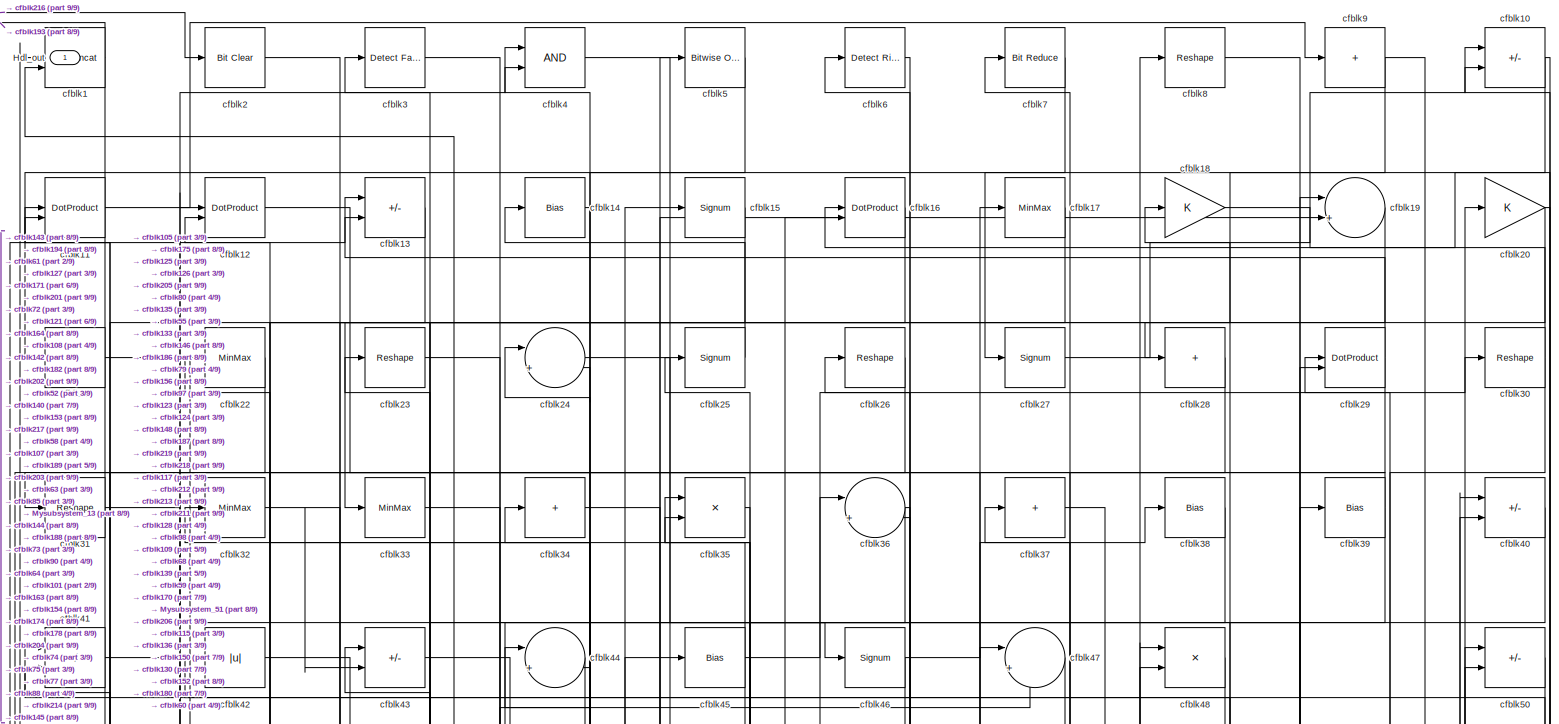
[diagram: root canvas - part 1/9, full width, top band]
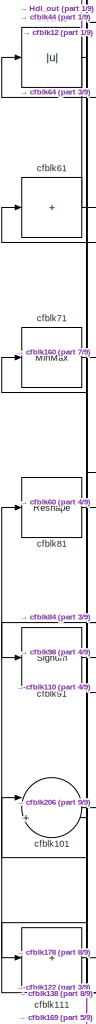
[diagram: root canvas - part 2/9, middle left region]
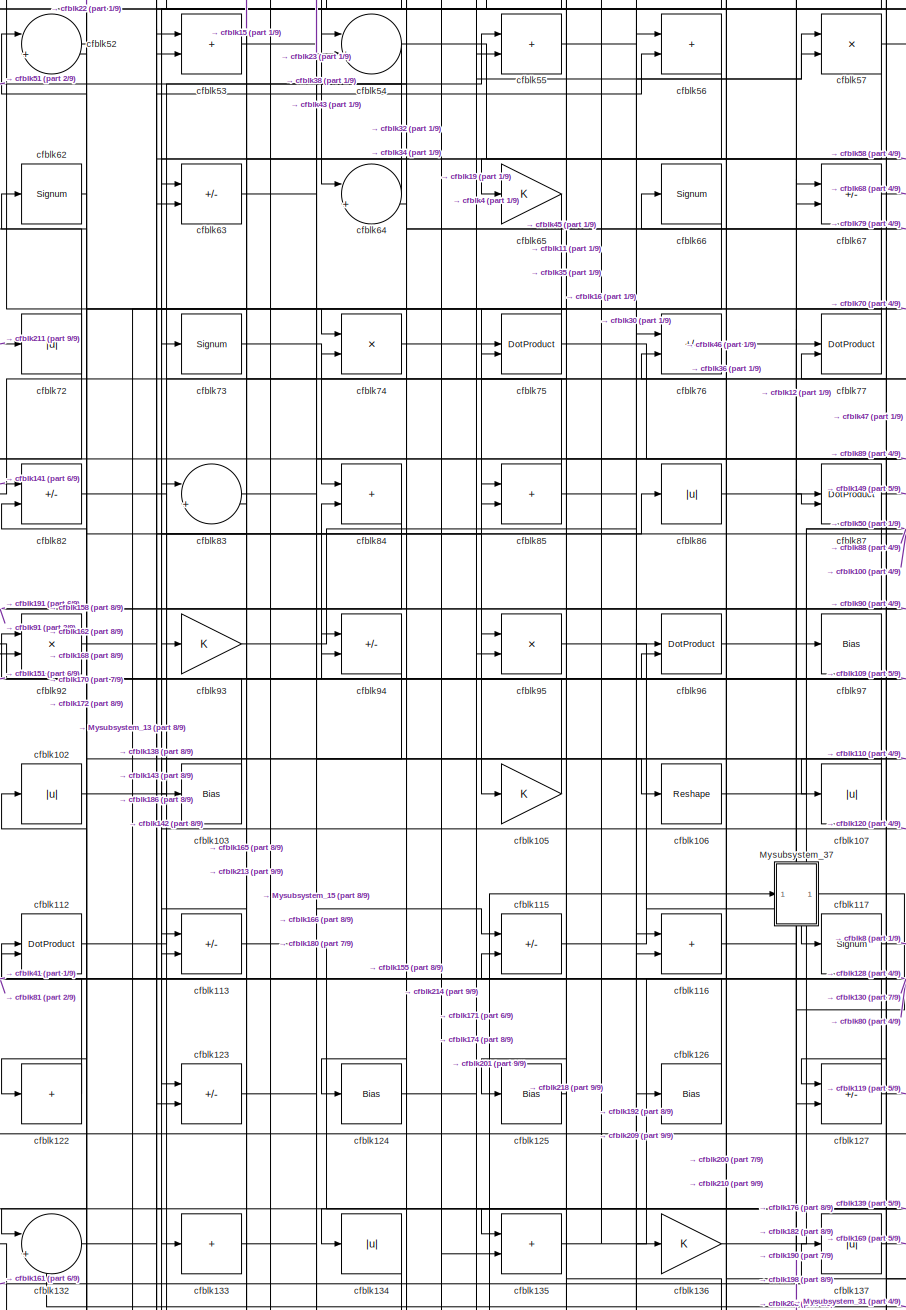
[diagram: root canvas - part 3/9, central region]
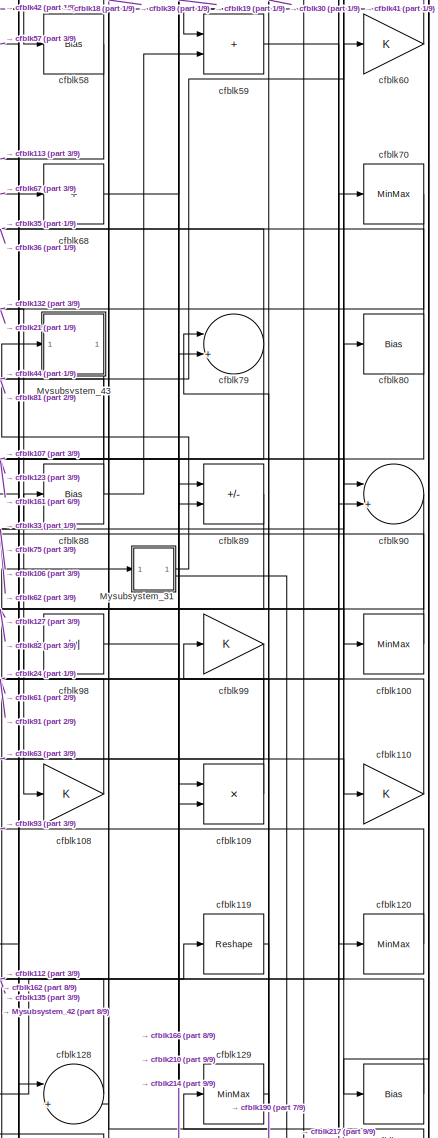
[diagram: root canvas - part 4/9, middle right region]
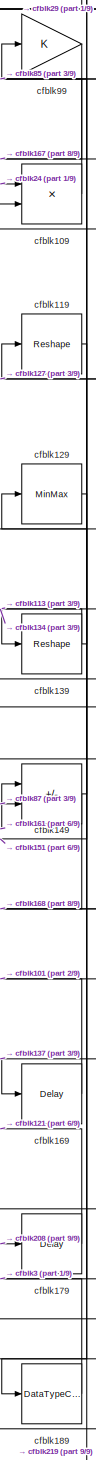
[diagram: root canvas - part 5/9, middle right region]
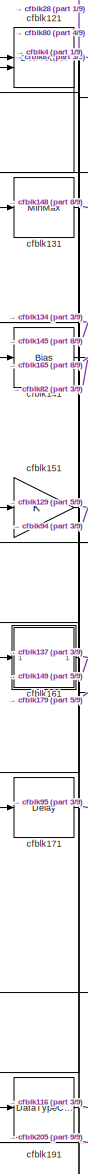
[diagram: root canvas - part 6/9, bottom left region]
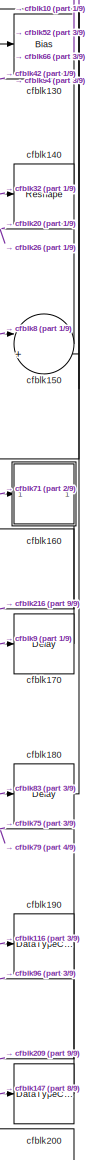
[diagram: root canvas - part 7/9, bottom right region]
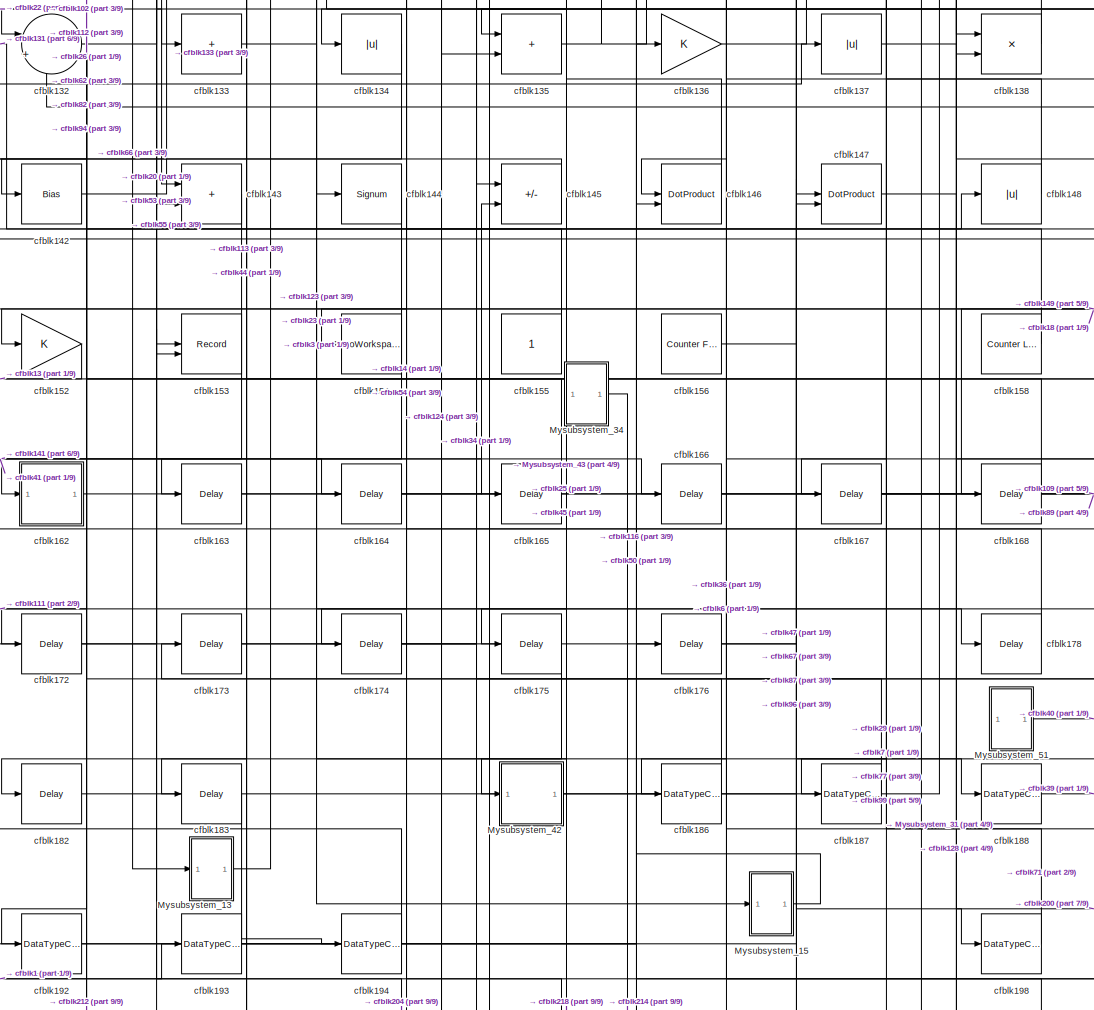
[diagram: root canvas - part 8/9, bottom center region]
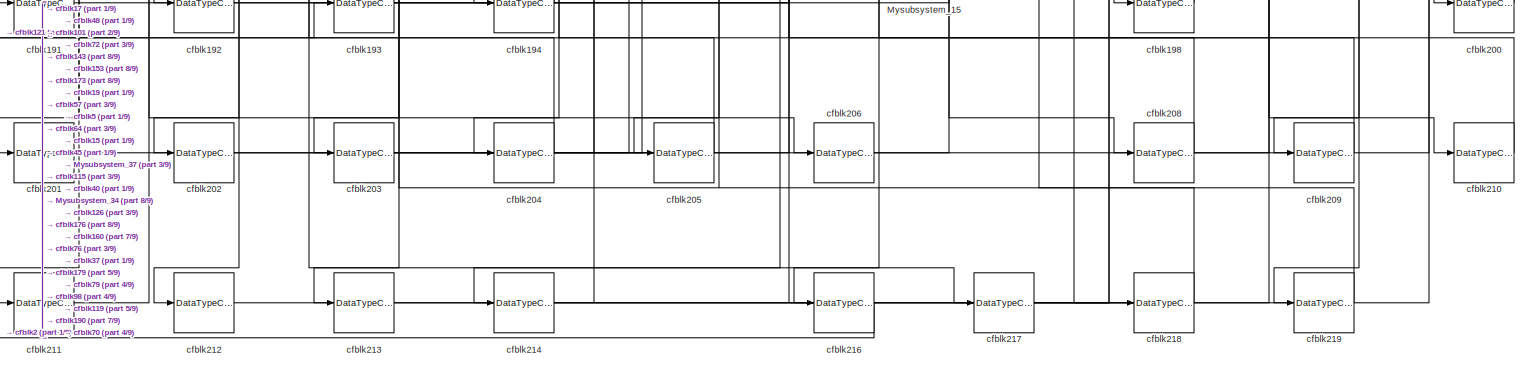
[diagram: root canvas - part 9/9, full width, bottom band]
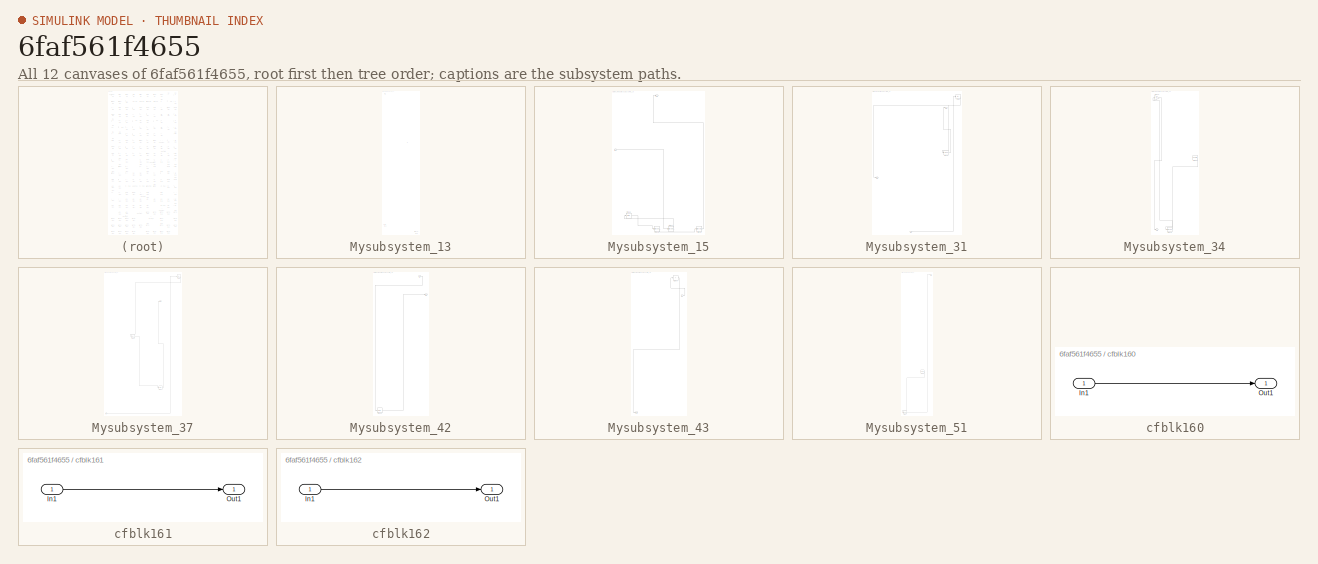
[diagram: thumbnail index - all 12 canvases of the model, root first then tree order]
MODEL slx_6faf561f4655
KIND model
CONFIG AbsTol = auto
CONFIG EnableMultiTasking = off
CONFIG FixedStep = auto
CONFIG MaxStep = auto
CONFIG MinStep = auto
CONFIG RelTol = 1e-3
CONFIG SampleTimeConstraint = Unconstrained
CONFIG SolverName = VariableStepAuto
CONFIG StartTime = 0.0
CONFIG StopTime = 10.0
BLOCK [Outport] Hdl_out
  OutDataTypeStr = uint8
BLOCK [SubSystem] Mysubsystem_13
  RTWFcnName = Mysubsystem_13
  RTWFcnNameOpts = User specified
  RTWFileNameOpts = Use function name
  RTWSystemCode = Reusable function
  TreatAsAtomicUnit = on
BLOCK [Inport] Mysubsystem_13/In1
BLOCK [Outport] Mysubsystem_13/Out1
BLOCK [Delay] Mysubsystem_13/cfblk181
  InputPortMap = u0
  SampleTime = 1
BLOCK [DataTypeConversion] Mysubsystem_13/cfblk195
  OutDataTypeStr = uint8
  RndMeth = Floor
  SaturateOnIntegerOverflow = off
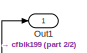
[diagram: Mysubsystem_15 - part 1/2, top center region]
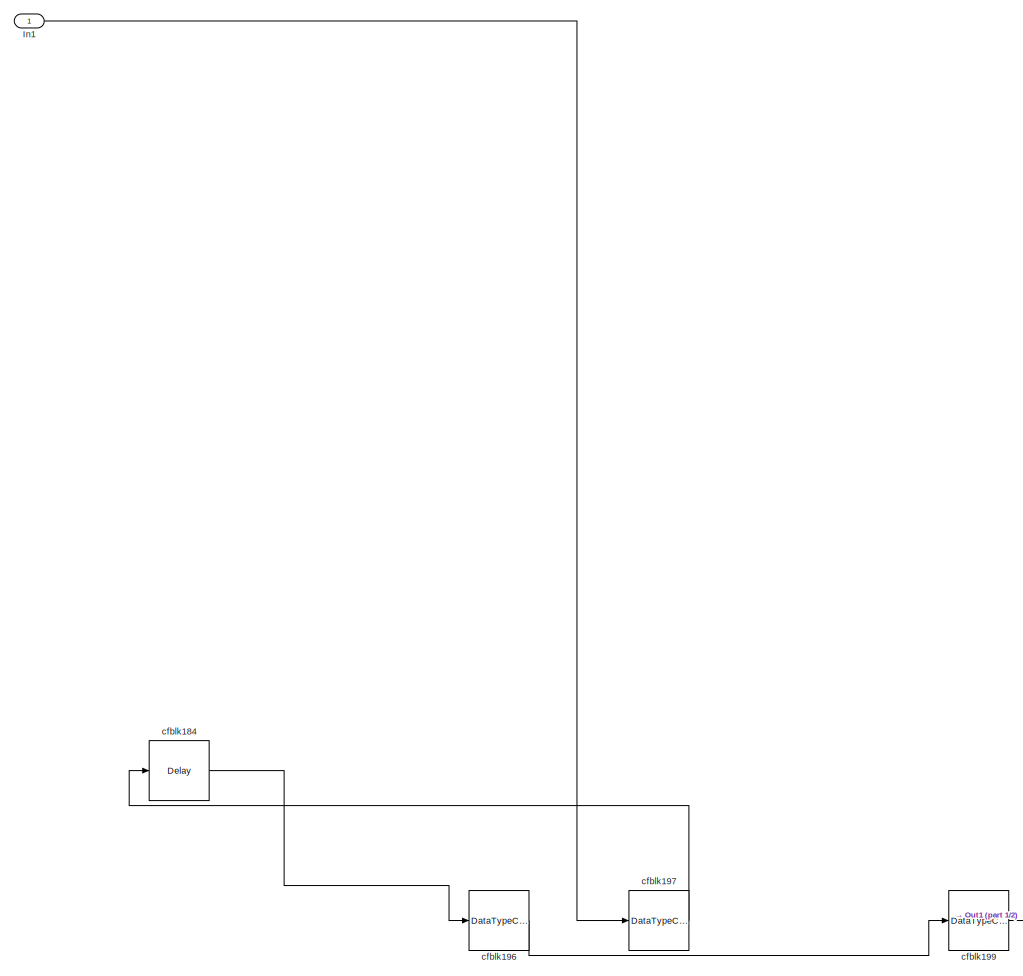
[diagram: Mysubsystem_15 - part 2/2, full width, bottom band]
BLOCK [SubSystem] Mysubsystem_15
  RTWFcnName = Mysubsystem_15
  RTWFcnNameOpts = User specified
  RTWFileNameOpts = Use function name
  RTWSystemCode = Reusable function
  TreatAsAtomicUnit = on
BLOCK [Inport] Mysubsystem_15/In1
BLOCK [Outport] Mysubsystem_15/Out1
BLOCK [Delay] Mysubsystem_15/cfblk184
  InputPortMap = u0
  SampleTime = 1
BLOCK [DataTypeConversion] Mysubsystem_15/cfblk196
  OutDataTypeStr = uint8
  RndMeth = Floor
  SaturateOnIntegerOverflow = off
BLOCK [DataTypeConversion] Mysubsystem_15/cfblk197
  OutDataTypeStr = uint8
  RndMeth = Floor
  SaturateOnIntegerOverflow = off
BLOCK [DataTypeConversion] Mysubsystem_15/cfblk199
  OutDataTypeStr = uint8
  RndMeth = Floor
  SaturateOnIntegerOverflow = off
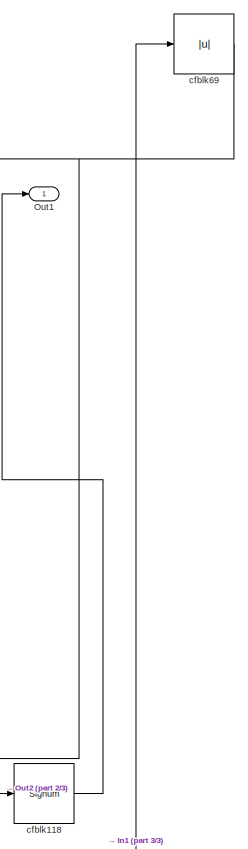
[diagram: Mysubsystem_31 - part 1/3, top right region]
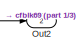
[diagram: Mysubsystem_31 - part 2/3, middle left region]
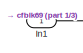
[diagram: Mysubsystem_31 - part 3/3, bottom center region]
BLOCK [SubSystem] Mysubsystem_31
  RTWFcnName = Mysubsystem_31
  RTWFcnNameOpts = User specified
  RTWFileNameOpts = Use function name
  RTWSystemCode = Reusable function
  TreatAsAtomicUnit = on
BLOCK [Inport] Mysubsystem_31/In1
BLOCK [Outport] Mysubsystem_31/Out1
BLOCK [Outport] Mysubsystem_31/Out2
  Port = 2
BLOCK [Signum] Mysubsystem_31/cfblk118
BLOCK [Abs] Mysubsystem_31/cfblk69
  SaturateOnIntegerOverflow = off
BLOCK [SubSystem] Mysubsystem_34
  RTWFcnName = Mysubsystem_34
  RTWFcnNameOpts = User specified
  RTWFileNameOpts = Use function name
  RTWSystemCode = Reusable function
  TreatAsAtomicUnit = on
BLOCK [Outport] Mysubsystem_34/Out1
BLOCK [Gain] Mysubsystem_34/cfblk104
BLOCK [Reference] Mysubsystem_34/cfblk157  REF=hdlsllib/Sources/Counter
Free-Running
  SourceBlock = hdlsllib/Sources/Counter\nFree-Running
  SourceType = Counter Free-Running
BLOCK [DataTypeConversion] Mysubsystem_34/cfblk215
  OutDataTypeStr = uint8
  RndMeth = Floor
  SaturateOnIntegerOverflow = off
BLOCK [SubSystem] Mysubsystem_37
  RTWFcnName = Mysubsystem_37
  RTWFcnNameOpts = User specified
  RTWFileNameOpts = Use function name
  RTWSystemCode = Reusable function
  TreatAsAtomicUnit = on
BLOCK [Inport] Mysubsystem_37/In1
BLOCK [Outport] Mysubsystem_37/Out1
BLOCK [Abs] Mysubsystem_37/cfblk114
  SaturateOnIntegerOverflow = off
BLOCK [Delay] Mysubsystem_37/cfblk177
  InputPortMap = u0
  SampleTime = 1
BLOCK [Abs] Mysubsystem_37/cfblk49
  SaturateOnIntegerOverflow = off
BLOCK [SubSystem] Mysubsystem_42
  RTWFcnName = Mysubsystem_42
  RTWFcnNameOpts = User specified
  RTWFileNameOpts = Use function name
  RTWSystemCode = Reusable function
  TreatAsAtomicUnit = on
BLOCK [Inport] Mysubsystem_42/In1
BLOCK [Outport] Mysubsystem_42/Out1
BLOCK [Delay] Mysubsystem_42/cfblk185
  InputPortMap = u0
  SampleTime = 1
BLOCK [SubSystem] Mysubsystem_43
  RTWFcnName = Mysubsystem_43
  RTWFcnNameOpts = User specified
  RTWFileNameOpts = Use function name
  RTWSystemCode = Reusable function
  TreatAsAtomicUnit = on
BLOCK [Inport] Mysubsystem_43/In1
BLOCK [Outport] Mysubsystem_43/Out1
BLOCK [Sum] Mysubsystem_43/cfblk78
  IconShape = rectangular
  Inputs = +
BLOCK [SubSystem] Mysubsystem_51
  RTWFcnName = Mysubsystem_51
  RTWFcnNameOpts = User specified
  RTWFileNameOpts = Use function name
  RTWSystemCode = Reusable function
  TreatAsAtomicUnit = on
BLOCK [Outport] Mysubsystem_51/Out1
BLOCK [Reference] Mysubsystem_51/cfblk159  REF=hdlsllib/Sources/Counter
Free-Running
  SourceBlock = hdlsllib/Sources/Counter\nFree-Running
  SourceType = Counter Free-Running
BLOCK [DataTypeConversion] Mysubsystem_51/cfblk207
  OutDataTypeStr = uint8
  RndMeth = Floor
  SaturateOnIntegerOverflow = off
BLOCK [Reference] cfblk1  REF=hdlsllib/Logic and Bit
Operations/Bit Concat
  SourceBlock = hdlsllib/Logic and Bit\nOperations/Bit Concat
  SourceType = Bit Concat
BLOCK [Sum] cfblk10
  IconShape = rectangular
  Inputs = +-
  OutDataTypeStr = uint8
BLOCK [MinMax] cfblk100
  OutDataTypeStr = uint8
BLOCK [Sum] cfblk101
  Inputs = |++
  OutDataTypeStr = uint8
BLOCK [Abs] cfblk102
  OutDataTypeStr = uint8
  SaturateOnIntegerOverflow = off
BLOCK [Bias] cfblk103
  Bias = 0.0
  SaturateOnIntegerOverflow = off
BLOCK [Gain] cfblk105
  OutDataTypeStr = uint8
BLOCK [Reshape] cfblk106
BLOCK [Abs] cfblk107
  OutDataTypeStr = uint8
  SaturateOnIntegerOverflow = off
BLOCK [Gain] cfblk108
  OutDataTypeStr = uint8
BLOCK [Product] cfblk109
  Inputs = */
  OutDataTypeStr = uint8
  RndMeth = Zero
  SaturateOnIntegerOverflow = on
BLOCK [DotProduct] cfblk11
  OutDataTypeStr = uint8
BLOCK [Gain] cfblk110
  OutDataTypeStr = uint8
BLOCK [Sum] cfblk111
  IconShape = rectangular
  Inputs = +
  OutDataTypeStr = uint8
BLOCK [DotProduct] cfblk112
  OutDataTypeStr = uint8
BLOCK [Sum] cfblk113
  IconShape = rectangular
  Inputs = +-
  OutDataTypeStr = uint8
BLOCK [Sum] cfblk115
  IconShape = rectangular
  Inputs = +-
  OutDataTypeStr = uint8
BLOCK [Sum] cfblk116
  IconShape = rectangular
  OutDataTypeStr = uint8
BLOCK [Signum] cfblk117
BLOCK [Reshape] cfblk119
BLOCK [DotProduct] cfblk12
  OutDataTypeStr = uint8
BLOCK [MinMax] cfblk120
  OutDataTypeStr = uint8
BLOCK [DotProduct] cfblk121
  OutDataTypeStr = uint8
BLOCK [Sum] cfblk122
  IconShape = rectangular
  Inputs = +
  OutDataTypeStr = uint8
BLOCK [Sum] cfblk123
  IconShape = rectangular
  Inputs = +-
  OutDataTypeStr = uint8
BLOCK [Bias] cfblk124
  Bias = 0.0
  SaturateOnIntegerOverflow = off
BLOCK [Bias] cfblk125
  Bias = 0.0
  SaturateOnIntegerOverflow = off
BLOCK [Bias] cfblk126
  Bias = 0.0
  SaturateOnIntegerOverflow = off
BLOCK [Sum] cfblk127
  IconShape = rectangular
  Inputs = +-
  OutDataTypeStr = uint8
BLOCK [Sum] cfblk128
  Inputs = |++
  OutDataTypeStr = uint8
BLOCK [MinMax] cfblk129
  OutDataTypeStr = uint8
BLOCK [Sum] cfblk13
  IconShape = rectangular
  Inputs = +-
  OutDataTypeStr = uint8
BLOCK [Bias] cfblk130
  Bias = 0.0
  SaturateOnIntegerOverflow = off
BLOCK [MinMax] cfblk131
  OutDataTypeStr = uint8
BLOCK [Sum] cfblk132
  Inputs = |++
  OutDataTypeStr = uint8
BLOCK [Sum] cfblk133
  IconShape = rectangular
  Inputs = +
  OutDataTypeStr = uint8
BLOCK [Abs] cfblk134
  OutDataTypeStr = uint8
  SaturateOnIntegerOverflow = off
BLOCK [Sum] cfblk135
  IconShape = rectangular
  OutDataTypeStr = uint8
BLOCK [Gain] cfblk136
  OutDataTypeStr = uint8
BLOCK [Abs] cfblk137
  OutDataTypeStr = uint8
  SaturateOnIntegerOverflow = off
BLOCK [Product] cfblk138
  Inputs = */
  OutDataTypeStr = uint8
  RndMeth = Zero
  SaturateOnIntegerOverflow = on
BLOCK [Reshape] cfblk139
BLOCK [Bias] cfblk14
  Bias = 0.0
  SaturateOnIntegerOverflow = off
BLOCK [Reshape] cfblk140
BLOCK [Bias] cfblk141
  Bias = 0.0
  SaturateOnIntegerOverflow = off
BLOCK [Bias] cfblk142
  Bias = 0.0
  SaturateOnIntegerOverflow = off
BLOCK [Sum] cfblk143
  IconShape = rectangular
  OutDataTypeStr = uint8
BLOCK [Signum] cfblk144
BLOCK [Sum] cfblk145
  IconShape = rectangular
  Inputs = +-
  OutDataTypeStr = uint8
BLOCK [DotProduct] cfblk146
  OutDataTypeStr = uint8
BLOCK [DotProduct] cfblk147
  OutDataTypeStr = uint8
BLOCK [Abs] cfblk148
  OutDataTypeStr = uint8
  SaturateOnIntegerOverflow = off
BLOCK [Sum] cfblk149
  IconShape = rectangular
  Inputs = +-
  OutDataTypeStr = uint8
BLOCK [Signum] cfblk15
BLOCK [Sum] cfblk150
  Inputs = |++
  OutDataTypeStr = uint8
BLOCK [Gain] cfblk151
  OutDataTypeStr = uint8
BLOCK [Gain] cfblk152
  OutDataTypeStr = uint8
BLOCK [Record] cfblk153
  CompatibilityTag = XY
  FileSettingsInternal = {"entries":[{"content":{"excelSettings":{"content":{},"type":"Streamout.ExcelSettings"}},"type":"Streamout.FileSettingStorage","uuid":""}],"packageUris":["http:\/\/schema.mathworks.com\/mf0\/streamout_blocks\/R2020a"],"version":"1.0"}
  Layout = [1 1]
  SignalsInternal = {"entries":[{"content":{"signals":[{"content":{"blockPath":[],"dimensions":[1],"domain":"","lineColor":"#a2142f","plots":[1],"port":1,"signalID":20996,"signalName":"cfblk204"},"type":"RecordBlkView.Signal","uuid":""},{"content":{"blockPath":[],"dimensions":[1],"domain":"","lineColor":"#139fff","plots":[1],"port":2,"signalID":20999,"signalName":"cfblk20"},"type":"RecordBlkView.Signal","uuid":""}]},...<+143ch>
  VisualizationBindings = {"xyplotplugin":{"info":[{"series":[{"bindingParametersList":[{"parameter":"X-Axis","signalID":20996,"signalName":"cfblk204"},{"parameter":"Y-Axis","signalID":20999,"signalName":"cfblk20"}],"seriesID":1629}],"subplotID":1}]}}
  st = -1
BLOCK [ToWorkspace] cfblk154
  MaxDataPoints = inf
  SampleTime = -1
  SaveFormat = Timeseries
  VariableName = simout
BLOCK [Constant] cfblk155
  OutDataTypeStr = uint8
  SampleTime = -1
BLOCK [Reference] cfblk156  REF=hdlsllib/Sources/Counter
Free-Running
  SourceBlock = hdlsllib/Sources/Counter\nFree-Running
  SourceType = Counter Free-Running
BLOCK [Reference] cfblk158  REF=hdlsllib/Sources/Counter
Limited
  SourceBlock = hdlsllib/Sources/Counter\nLimited
  SourceType = Counter Limited
BLOCK [DotProduct] cfblk16
  OutDataTypeStr = uint8
BLOCK [SubSystem] cfblk160
  LibrarySourceBlock = hdlsllib/Ports &\nSubsystems/Subsystem
BLOCK [Inport] cfblk160/In1
BLOCK [Outport] cfblk160/Out1
BLOCK [SubSystem] cfblk161
  LibrarySourceBlock = hdlsllib/Ports &\nSubsystems/Subsystem
BLOCK [Inport] cfblk161/In1
BLOCK [Outport] cfblk161/Out1
BLOCK [SubSystem] cfblk162
  LibrarySourceBlock = hdlsllib/Ports &\nSubsystems/Subsystem
BLOCK [Inport] cfblk162/In1
BLOCK [Outport] cfblk162/Out1
BLOCK [Delay] cfblk163
  InputPortMap = u0
  SampleTime = 1
BLOCK [Delay] cfblk164
  InputPortMap = u0
  SampleTime = 1
BLOCK [Delay] cfblk165
  InputPortMap = u0
  SampleTime = 1
BLOCK [Delay] cfblk166
  InputPortMap = u0
  SampleTime = 1
BLOCK [Delay] cfblk167
  InputPortMap = u0
  SampleTime = 1
BLOCK [Delay] cfblk168
  InputPortMap = u0
  SampleTime = 1
BLOCK [Delay] cfblk169
  InputPortMap = u0
  SampleTime = 1
BLOCK [MinMax] cfblk17
  OutDataTypeStr = uint8
BLOCK [Delay] cfblk170
  InputPortMap = u0
  SampleTime = 1
BLOCK [Delay] cfblk171
  InputPortMap = u0
  SampleTime = 1
BLOCK [Delay] cfblk172
  InputPortMap = u0
  SampleTime = 1
BLOCK [Delay] cfblk173
  InputPortMap = u0
  SampleTime = 1
BLOCK [Delay] cfblk174
  InputPortMap = u0
  SampleTime = 1
BLOCK [Delay] cfblk175
  InputPortMap = u0
  SampleTime = 1
BLOCK [Delay] cfblk176
  InputPortMap = u0
  SampleTime = 1
BLOCK [Delay] cfblk178
  InputPortMap = u0
  SampleTime = 1
BLOCK [Delay] cfblk179
  InputPortMap = u0
  SampleTime = 1
BLOCK [Gain] cfblk18
  OutDataTypeStr = uint8
BLOCK [Delay] cfblk180
  InputPortMap = u0
  SampleTime = 1
BLOCK [Delay] cfblk182
  InputPortMap = u0
  SampleTime = 1
BLOCK [Delay] cfblk183
  InputPortMap = u0
  SampleTime = 1
BLOCK [DataTypeConversion] cfblk186
  OutDataTypeStr = uint8
  RndMeth = Floor
  SaturateOnIntegerOverflow = off
BLOCK [DataTypeConversion] cfblk187
  OutDataTypeStr = uint8
  RndMeth = Floor
  SaturateOnIntegerOverflow = off
BLOCK [DataTypeConversion] cfblk188
  OutDataTypeStr = uint8
  RndMeth = Floor
  SaturateOnIntegerOverflow = off
BLOCK [DataTypeConversion] cfblk189
  OutDataTypeStr = uint8
  RndMeth = Floor
  SaturateOnIntegerOverflow = off
BLOCK [Sum] cfblk19
  Inputs = |++
  OutDataTypeStr = uint8
BLOCK [DataTypeConversion] cfblk190
  OutDataTypeStr = uint8
  RndMeth = Floor
  SaturateOnIntegerOverflow = off
BLOCK [DataTypeConversion] cfblk191
  OutDataTypeStr = uint8
  RndMeth = Floor
  SaturateOnIntegerOverflow = off
BLOCK [DataTypeConversion] cfblk192
  OutDataTypeStr = uint8
  RndMeth = Floor
  SaturateOnIntegerOverflow = off
BLOCK [DataTypeConversion] cfblk193
  OutDataTypeStr = uint8
  RndMeth = Floor
  SaturateOnIntegerOverflow = off
BLOCK [DataTypeConversion] cfblk194
  OutDataTypeStr = uint8
  RndMeth = Floor
  SaturateOnIntegerOverflow = off
BLOCK [DataTypeConversion] cfblk198
  OutDataTypeStr = uint8
  RndMeth = Floor
  SaturateOnIntegerOverflow = off
BLOCK [Reference] cfblk2  REF=simulink/Logic and Bit
Operations/Bit Clear
  LibrarySourceBlock = hdlsllib/Logic and Bit\nOperations/Bit Clear
  SourceBlock = simulink/Logic and Bit\nOperations/Bit Clear
  SourceType = Bit Clear
BLOCK [Gain] cfblk20
  OutDataTypeStr = uint8
BLOCK [DataTypeConversion] cfblk200
  OutDataTypeStr = uint8
  RndMeth = Floor
  SaturateOnIntegerOverflow = off
BLOCK [DataTypeConversion] cfblk201
  OutDataTypeStr = uint8
  RndMeth = Floor
  SaturateOnIntegerOverflow = off
BLOCK [DataTypeConversion] cfblk202
  OutDataTypeStr = uint8
  RndMeth = Floor
  SaturateOnIntegerOverflow = off
BLOCK [DataTypeConversion] cfblk203
  OutDataTypeStr = uint8
  RndMeth = Floor
  SaturateOnIntegerOverflow = off
BLOCK [DataTypeConversion] cfblk204
  OutDataTypeStr = uint8
  RndMeth = Floor
  SaturateOnIntegerOverflow = off
BLOCK [DataTypeConversion] cfblk205
  OutDataTypeStr = uint8
  RndMeth = Floor
  SaturateOnIntegerOverflow = off
BLOCK [DataTypeConversion] cfblk206
  OutDataTypeStr = uint8
  RndMeth = Floor
  SaturateOnIntegerOverflow = off
BLOCK [DataTypeConversion] cfblk208
  OutDataTypeStr = uint8
  RndMeth = Floor
  SaturateOnIntegerOverflow = off
BLOCK [DataTypeConversion] cfblk209
  OutDataTypeStr = uint8
  RndMeth = Floor
  SaturateOnIntegerOverflow = off
BLOCK [Sum] cfblk21
  IconShape = rectangular
  Inputs = +
  OutDataTypeStr = uint8
BLOCK [DataTypeConversion] cfblk210
  OutDataTypeStr = uint8
  RndMeth = Floor
  SaturateOnIntegerOverflow = off
BLOCK [DataTypeConversion] cfblk211
  OutDataTypeStr = uint8
  RndMeth = Floor
  SaturateOnIntegerOverflow = off
BLOCK [DataTypeConversion] cfblk212
  OutDataTypeStr = uint8
  RndMeth = Floor
  SaturateOnIntegerOverflow = off
BLOCK [DataTypeConversion] cfblk213
  OutDataTypeStr = uint8
  RndMeth = Floor
  SaturateOnIntegerOverflow = off
BLOCK [DataTypeConversion] cfblk214
  OutDataTypeStr = uint8
  RndMeth = Floor
  SaturateOnIntegerOverflow = off
BLOCK [DataTypeConversion] cfblk216
  OutDataTypeStr = uint8
  RndMeth = Floor
  SaturateOnIntegerOverflow = off
BLOCK [DataTypeConversion] cfblk217
  OutDataTypeStr = uint8
  RndMeth = Floor
  SaturateOnIntegerOverflow = off
BLOCK [DataTypeConversion] cfblk218
  OutDataTypeStr = uint8
  RndMeth = Floor
  SaturateOnIntegerOverflow = off
BLOCK [DataTypeConversion] cfblk219
  OutDataTypeStr = uint8
  RndMeth = Floor
  SaturateOnIntegerOverflow = off
BLOCK [MinMax] cfblk22
  OutDataTypeStr = uint8
BLOCK [Reshape] cfblk23
BLOCK [Sum] cfblk24
  Inputs = |++
  OutDataTypeStr = uint8
BLOCK [Signum] cfblk25
BLOCK [Reshape] cfblk26
BLOCK [Signum] cfblk27
BLOCK [Sum] cfblk28
  IconShape = rectangular
  Inputs = +
  OutDataTypeStr = uint8
BLOCK [DotProduct] cfblk29
  OutDataTypeStr = uint8
BLOCK [Reference] cfblk3  REF=hdlsllib/Logic and Bit
Operations/Detect Fall
Nonpositive
  SourceBlock = hdlsllib/Logic and Bit\nOperations/Detect Fall\nNonpositive
  SourceType = Detect Fall Nonpositive
BLOCK [Reshape] cfblk30
BLOCK [Reshape] cfblk31
BLOCK [MinMax] cfblk32
  OutDataTypeStr = uint8
BLOCK [MinMax] cfblk33
  OutDataTypeStr = uint8
BLOCK [Sum] cfblk34
  IconShape = rectangular
  Inputs = +
  OutDataTypeStr = uint8
BLOCK [Product] cfblk35
  Inputs = */
  OutDataTypeStr = uint8
  RndMeth = Zero
  SaturateOnIntegerOverflow = on
BLOCK [Sum] cfblk36
  Inputs = |++
  OutDataTypeStr = uint8
BLOCK [Sum] cfblk37
  IconShape = rectangular
  Inputs = +
  OutDataTypeStr = uint8
BLOCK [Bias] cfblk38
  Bias = 0.0
  SaturateOnIntegerOverflow = off
BLOCK [Bias] cfblk39
  Bias = 0.0
  SaturateOnIntegerOverflow = off
BLOCK [Logic] cfblk4
  AllPortsSameDT = off
  OutDataTypeStr = boolean
BLOCK [Sum] cfblk40
  IconShape = rectangular
  Inputs = +-
  OutDataTypeStr = uint8
BLOCK [Sum] cfblk41
  IconShape = rectangular
  Inputs = +-
  OutDataTypeStr = uint8
BLOCK [Abs] cfblk42
  OutDataTypeStr = uint8
  SaturateOnIntegerOverflow = off
BLOCK [Sum] cfblk43
  IconShape = rectangular
  Inputs = +-
  OutDataTypeStr = uint8
BLOCK [Sum] cfblk44
  Inputs = |++
  OutDataTypeStr = uint8
BLOCK [Bias] cfblk45
  Bias = 0.0
  SaturateOnIntegerOverflow = off
BLOCK [Signum] cfblk46
BLOCK [Sum] cfblk47
  Inputs = |++
  OutDataTypeStr = uint8
BLOCK [Product] cfblk48
  Inputs = */
  OutDataTypeStr = uint8
  RndMeth = Zero
  SaturateOnIntegerOverflow = on
BLOCK [Reference] cfblk5  REF=simulink/Logic and Bit
Operations/Bitwise
Operator
  LibrarySourceBlock = hdlsllib/Logic and Bit\nOperations/Bitwise\nOperator
  SourceBlock = simulink/Logic and Bit\nOperations/Bitwise\nOperator
  SourceType = Bitwise Operator
BLOCK [Sum] cfblk50
  IconShape = rectangular
  Inputs = +-
  OutDataTypeStr = uint8
BLOCK [Abs] cfblk51
  OutDataTypeStr = uint8
  SaturateOnIntegerOverflow = off
BLOCK [Sum] cfblk52
  Inputs = |++
  OutDataTypeStr = uint8
BLOCK [Sum] cfblk53
  IconShape = rectangular
  OutDataTypeStr = uint8
BLOCK [Sum] cfblk54
  Inputs = |++
  OutDataTypeStr = uint8
BLOCK [Sum] cfblk55
  IconShape = rectangular
  OutDataTypeStr = uint8
BLOCK [Sum] cfblk56
  IconShape = rectangular
  OutDataTypeStr = uint8
BLOCK [Product] cfblk57
  Inputs = */
  OutDataTypeStr = uint8
  RndMeth = Zero
  SaturateOnIntegerOverflow = on
BLOCK [Bias] cfblk58
  Bias = 0.0
  SaturateOnIntegerOverflow = off
BLOCK [Sum] cfblk59
  IconShape = rectangular
  OutDataTypeStr = uint8
BLOCK [Reference] cfblk6  REF=hdlsllib/Logic and Bit
Operations/Detect Rise
Positive
  SourceBlock = hdlsllib/Logic and Bit\nOperations/Detect Rise\nPositive
  SourceType = Detect Rise Positive
BLOCK [Gain] cfblk60
  OutDataTypeStr = uint8
BLOCK [Sum] cfblk61
  IconShape = rectangular
  Inputs = +
  OutDataTypeStr = uint8
BLOCK [Signum] cfblk62
BLOCK [Sum] cfblk63
  IconShape = rectangular
  Inputs = +-
  OutDataTypeStr = uint8
BLOCK [Sum] cfblk64
  Inputs = |++
  OutDataTypeStr = uint8
BLOCK [Gain] cfblk65
  OutDataTypeStr = uint8
BLOCK [Signum] cfblk66
BLOCK [Sum] cfblk67
  IconShape = rectangular
  Inputs = +-
  OutDataTypeStr = uint8
BLOCK [Sum] cfblk68
  IconShape = rectangular
  Inputs = +
  OutDataTypeStr = uint8
BLOCK [Reference] cfblk7  REF=hdlsllib/Logic and Bit
Operations/Bit Reduce
  SourceBlock = hdlsllib/Logic and Bit\nOperations/Bit Reduce
  SourceType = Bit Reduce
BLOCK [MinMax] cfblk70
  OutDataTypeStr = uint8
BLOCK [MinMax] cfblk71
  OutDataTypeStr = uint8
BLOCK [Abs] cfblk72
  OutDataTypeStr = uint8
  SaturateOnIntegerOverflow = off
BLOCK [Signum] cfblk73
BLOCK [Product] cfblk74
  Inputs = */
  OutDataTypeStr = uint8
  RndMeth = Zero
  SaturateOnIntegerOverflow = on
BLOCK [DotProduct] cfblk75
  OutDataTypeStr = uint8
BLOCK [Sum] cfblk76
  IconShape = rectangular
  Inputs = +-
  OutDataTypeStr = uint8
BLOCK [DotProduct] cfblk77
  OutDataTypeStr = uint8
BLOCK [Sum] cfblk79
  Inputs = |++
  OutDataTypeStr = uint8
BLOCK [Reshape] cfblk8
BLOCK [Bias] cfblk80
  Bias = 0.0
  SaturateOnIntegerOverflow = off
BLOCK [Reshape] cfblk81
BLOCK [Sum] cfblk82
  IconShape = rectangular
  Inputs = +-
  OutDataTypeStr = uint8
BLOCK [Sum] cfblk83
  Inputs = |++
  OutDataTypeStr = uint8
BLOCK [Sum] cfblk84
  IconShape = rectangular
  OutDataTypeStr = uint8
BLOCK [Sum] cfblk85
  IconShape = rectangular
  OutDataTypeStr = uint8
BLOCK [Abs] cfblk86
  OutDataTypeStr = uint8
  SaturateOnIntegerOverflow = off
BLOCK [DotProduct] cfblk87
  OutDataTypeStr = uint8
BLOCK [Bias] cfblk88
  Bias = 0.0
  SaturateOnIntegerOverflow = off
BLOCK [Sum] cfblk89
  IconShape = rectangular
  Inputs = +-
  OutDataTypeStr = uint8
BLOCK [Sum] cfblk9
  IconShape = rectangular
  Inputs = +
  OutDataTypeStr = uint8
BLOCK [Sum] cfblk90
  Inputs = |++
  OutDataTypeStr = uint8
BLOCK [Signum] cfblk91
BLOCK [Product] cfblk92
  Inputs = */
  OutDataTypeStr = uint8
  RndMeth = Zero
  SaturateOnIntegerOverflow = on
BLOCK [Gain] cfblk93
  OutDataTypeStr = uint8
BLOCK [Sum] cfblk94
  IconShape = rectangular
  Inputs = +-
  OutDataTypeStr = uint8
BLOCK [Product] cfblk95
  Inputs = */
  OutDataTypeStr = uint8
  RndMeth = Zero
  SaturateOnIntegerOverflow = on
BLOCK [DotProduct] cfblk96
  OutDataTypeStr = uint8
BLOCK [Bias] cfblk97
  Bias = 0.0
  SaturateOnIntegerOverflow = off
BLOCK [Abs] cfblk98
  OutDataTypeStr = uint8
  SaturateOnIntegerOverflow = off
BLOCK [Gain] cfblk99
  OutDataTypeStr = uint8
LINE Mysubsystem_13/In1:1 -> Mysubsystem_13/cfblk181:1
LINE Mysubsystem_13/cfblk181:1 -> Mysubsystem_13/cfblk195:1
LINE Mysubsystem_13/cfblk195:1 -> Mysubsystem_13/Out1:1
LINE Mysubsystem_13:1 -> cfblk1:2
LINE Mysubsystem_15/In1:1 -> Mysubsystem_15/cfblk197:1
LINE Mysubsystem_15/cfblk184:1 -> Mysubsystem_15/cfblk196:1
LINE Mysubsystem_15/cfblk196:1 -> Mysubsystem_15/cfblk199:1
LINE Mysubsystem_15/cfblk197:1 -> Mysubsystem_15/cfblk184:1
LINE Mysubsystem_15/cfblk199:1 -> Mysubsystem_15/Out1:1
LINE Mysubsystem_15:1 -> cfblk96:1
LINE Mysubsystem_31/In1:1 -> Mysubsystem_31/cfblk69:1
LINE Mysubsystem_31/cfblk118:1 -> Mysubsystem_31/Out1:1
NET Mysubsystem_31/cfblk69:1 -> Mysubsystem_31/Out2:1, Mysubsystem_31/cfblk118:1
LINE Mysubsystem_31:1 -> Mysubsystem_43:1
LINE Mysubsystem_31:2 -> cfblk132:2
LINE Mysubsystem_34/cfblk104:1 -> Mysubsystem_34/Out1:1
LINE Mysubsystem_34/cfblk157:1 -> Mysubsystem_34/cfblk215:1
LINE Mysubsystem_34/cfblk215:1 -> Mysubsystem_34/cfblk104:1
LINE Mysubsystem_34:1 -> cfblk214:1
LINE Mysubsystem_37/In1:1 -> Mysubsystem_37/cfblk49:1
LINE Mysubsystem_37/cfblk114:1 -> Mysubsystem_37/cfblk177:1
LINE Mysubsystem_37/cfblk177:1 -> Mysubsystem_37/Out1:1
LINE Mysubsystem_37/cfblk49:1 -> Mysubsystem_37/cfblk114:1
LINE Mysubsystem_37:1 -> cfblk77:1
LINE Mysubsystem_42/In1:1 -> Mysubsystem_42/cfblk185:1
LINE Mysubsystem_42/cfblk185:1 -> Mysubsystem_42/Out1:1
LINE Mysubsystem_42:1 -> Mysubsystem_31:1
LINE Mysubsystem_43/In1:1 -> Mysubsystem_43/cfblk78:1
LINE Mysubsystem_43/cfblk78:1 -> Mysubsystem_43/Out1:1
LINE Mysubsystem_43:1 -> Mysubsystem_42:1
LINE Mysubsystem_51/cfblk159:1 -> Mysubsystem_51/cfblk207:1
LINE Mysubsystem_51/cfblk207:1 -> Mysubsystem_51/Out1:1
LINE Mysubsystem_51:1 -> cfblk40:2
LINE cfblk100:1 -> cfblk62:1
LINE cfblk101:1 -> cfblk206:1
LINE cfblk102:1 -> cfblk85:2
LINE cfblk103:1 -> cfblk92:1
NET cfblk105:1 -> cfblk83:1, cfblk84:2
LINE cfblk106:1 -> cfblk88:1
NET cfblk107:1 -> cfblk43:1, cfblk74:2
NET cfblk108:1 -> cfblk24:1, cfblk24:2
LINE cfblk109:1 -> cfblk85:1
NET cfblk10:1 -> cfblk150:2, cfblk21:1
LINE cfblk110:1 -> cfblk61:1
LINE cfblk111:1 -> cfblk178:1
LINE cfblk112:1 -> cfblk54:2
LINE cfblk113:1 -> cfblk139:1
LINE cfblk115:1 -> cfblk50:2
LINE cfblk116:1 -> cfblk190:1
LINE cfblk117:1 -> cfblk8:1
LINE cfblk119:1 -> cfblk219:1
LINE cfblk11:1 -> cfblk9:1
LINE cfblk120:1 -> cfblk93:1
NET cfblk121:1 -> cfblk131:1, cfblk4:2
LINE cfblk122:1 -> cfblk81:1
LINE cfblk123:1 -> cfblk166:1
NET cfblk124:1 -> cfblk135:2, cfblk138:2, cfblk57:2
LINE cfblk125:1 -> cfblk95:1
NET cfblk126:1 -> cfblk11:2, cfblk35:1, cfblk75:2
NET cfblk127:1 -> cfblk119:1, cfblk41:2
LINE cfblk128:1 -> cfblk112:1
LINE cfblk129:1 -> cfblk189:1
LINE cfblk12:1 -> cfblk97:1
NET cfblk130:1 -> cfblk52:2, cfblk66:1, cfblk94:1
LINE cfblk131:1 -> cfblk148:1
LINE cfblk132:1 -> cfblk86:1
LINE cfblk133:1 -> Mysubsystem_15:1
LINE cfblk134:1 -> cfblk151:1
NET cfblk135:1 -> cfblk16:2, cfblk80:1
LINE cfblk136:1 -> cfblk50:1
LINE cfblk137:1 -> cfblk169:1
LINE cfblk138:1 -> cfblk71:1
NET cfblk139:1 -> cfblk134:1, cfblk29:1
LINE cfblk13:1 -> cfblk142:1
LINE cfblk140:1 -> cfblk42:1
NET cfblk141:1 -> cfblk165:1, cfblk82:1
LINE cfblk142:1 -> cfblk55:1
LINE cfblk143:1 -> cfblk212:1
LINE cfblk144:1 -> cfblk183:1
LINE cfblk145:1 -> cfblk141:1
LINE cfblk146:1 -> cfblk25:1
LINE cfblk147:1 -> cfblk200:1
LINE cfblk148:1 -> cfblk7:1
NET cfblk149:1 -> cfblk168:1, cfblk99:1
NET cfblk14:1 -> cfblk154:1, cfblk174:1
NET cfblk150:1 -> cfblk20:1, cfblk26:1
NET cfblk151:1 -> cfblk129:1, cfblk94:2
LINE cfblk152:1 -> cfblk13:1
LINE cfblk155:1 -> cfblk54:1
LINE cfblk156:1 -> cfblk47:1
LINE cfblk158:1 -> cfblk82:2
LINE cfblk15:1 -> cfblk73:1
LINE cfblk160/In1:1 -> cfblk160/Out1:1
LINE cfblk160:1 -> cfblk216:1
LINE cfblk161/In1:1 -> cfblk161/Out1:1
NET cfblk161:1 -> cfblk137:1, cfblk149:1
LINE cfblk162/In1:1 -> cfblk162/Out1:1
LINE cfblk162:1 -> cfblk128:1
LINE cfblk163:1 -> cfblk29:2
LINE cfblk164:1 -> cfblk145:2
LINE cfblk165:1 -> cfblk113:2
LINE cfblk166:1 -> cfblk89:1
LINE cfblk167:1 -> cfblk109:2
LINE cfblk168:1 -> cfblk112:2
LINE cfblk169:1 -> cfblk101:1
LINE cfblk16:1 -> cfblk33:1
LINE cfblk170:1 -> cfblk52:1
LINE cfblk171:1 -> cfblk95:2
LINE cfblk172:1 -> cfblk53:2
LINE cfblk173:1 -> cfblk147:1
LINE cfblk174:1 -> cfblk55:2
LINE cfblk175:1 -> cfblk192:1
LINE cfblk176:1 -> cfblk67:1
LINE cfblk178:1 -> cfblk44:1
LINE cfblk179:1 -> cfblk121:2
LINE cfblk17:1 -> cfblk201:1
LINE cfblk180:1 -> cfblk10:2
LINE cfblk182:1 -> cfblk87:1
LINE cfblk183:1 -> cfblk194:1
NET cfblk186:1 -> cfblk102:1, cfblk53:1
LINE cfblk187:1 -> cfblk6:1
LINE cfblk188:1 -> cfblk39:1
LINE cfblk189:1 -> cfblk3:1
LINE cfblk18:1 -> cfblk152:1
NET cfblk190:1 -> cfblk209:1, cfblk75:1, cfblk79:1
LINE cfblk191:1 -> cfblk116:1
LINE cfblk192:1 -> cfblk116:2
LINE cfblk193:1 -> cfblk147:2
LINE cfblk194:1 -> cfblk1:1
LINE cfblk198:1 -> cfblk77:2
NET cfblk19:1 -> cfblk202:1, cfblk203:1
LINE cfblk1:1 -> cfblk193:1
LINE cfblk200:1 -> cfblk96:2
LINE cfblk201:1 -> Mysubsystem_37:1
LINE cfblk202:1 -> cfblk17:1
LINE cfblk203:1 -> cfblk5:1
NET cfblk204:1 -> cfblk153:1, cfblk176:1, cfblk45:1
LINE cfblk205:1 -> cfblk121:1
LINE cfblk206:1 -> cfblk40:1
NET cfblk208:1 -> cfblk179:1, cfblk64:2
LINE cfblk209:1 -> cfblk76:1
NET cfblk20:1 -> cfblk130:1, cfblk153:2
LINE cfblk210:1 -> cfblk76:2
LINE cfblk211:1 -> cfblk72:1
LINE cfblk212:1 -> cfblk48:1
LINE cfblk213:1 -> cfblk48:2
NET cfblk214:1 -> cfblk126:1, cfblk15:1, cfblk79:2
LINE cfblk216:1 -> cfblk2:1
LINE cfblk217:1 -> cfblk70:1
NET cfblk218:1 -> cfblk115:2, cfblk173:1
LINE cfblk219:1 -> cfblk37:1
LINE cfblk21:1 -> cfblk108:1
LINE cfblk22:1 -> cfblk143:1
NET cfblk23:1 -> cfblk115:1, cfblk144:1
LINE cfblk24:1 -> cfblk109:1
LINE cfblk25:1 -> cfblk14:1
LINE cfblk26:1 -> cfblk182:1
LINE cfblk27:1 -> cfblk10:1
LINE cfblk28:1 -> cfblk171:1
NET cfblk29:1 -> cfblk13:2, cfblk187:1
LINE cfblk2:1 -> cfblk217:1
NET cfblk30:1 -> cfblk16:1, cfblk59:1
LINE cfblk31:1 -> cfblk46:1
NET cfblk32:1 -> cfblk140:1, cfblk43:2
LINE cfblk33:1 -> cfblk90:1
LINE cfblk34:1 -> cfblk145:1
LINE cfblk35:1 -> cfblk125:1
NET cfblk36:1 -> cfblk146:1, cfblk63:1
LINE cfblk37:1 -> cfblk218:1
LINE cfblk38:1 -> cfblk64:1
NET cfblk39:1 -> cfblk128:2, cfblk31:1
LINE cfblk3:1 -> cfblk188:1
LINE cfblk40:1 -> cfblk205:1
LINE cfblk41:1 -> cfblk164:1
LINE cfblk42:1 -> cfblk58:1
LINE cfblk43:1 -> cfblk136:1
NET cfblk44:1 -> cfblk101:2, cfblk163:1
NET cfblk45:1 -> cfblk12:2, cfblk175:1, cfblk36:1, cfblk63:2
NET cfblk46:1 -> cfblk133:1, cfblk38:1
NET cfblk47:1 -> cfblk123:1, cfblk124:1
LINE cfblk48:1 -> cfblk211:1
LINE cfblk4:1 -> cfblk105:1
LINE cfblk50:1 -> cfblk146:2
LINE cfblk51:1 -> cfblk111:1
LINE cfblk52:1 -> cfblk22:1
LINE cfblk53:1 -> cfblk106:1
NET cfblk54:1 -> cfblk138:1, cfblk143:2, cfblk83:2
NET cfblk55:1 -> cfblk30:1, cfblk67:2
LINE cfblk56:1 -> cfblk65:1
NET cfblk57:1 -> cfblk100:1, cfblk213:1
LINE cfblk58:1 -> cfblk113:1
LINE cfblk59:1 -> cfblk90:2
LINE cfblk5:1 -> cfblk204:1
LINE cfblk60:1 -> cfblk41:1
NET cfblk61:1 -> Hdl_out:1, cfblk12:1
LINE cfblk62:1 -> cfblk162:1
LINE cfblk63:1 -> cfblk110:1
LINE cfblk64:1 -> cfblk51:1
LINE cfblk65:1 -> cfblk122:1
NET cfblk66:1 -> Mysubsystem_13:1, cfblk74:1
NET cfblk67:1 -> cfblk127:2, cfblk68:1
LINE cfblk68:1 -> cfblk19:1
LINE cfblk6:1 -> cfblk186:1
LINE cfblk70:1 -> cfblk132:1
LINE cfblk71:1 -> cfblk160:1
NET cfblk72:1 -> cfblk11:1, cfblk92:2
NET cfblk73:1 -> cfblk47:2, cfblk84:1
NET cfblk74:1 -> cfblk19:2, cfblk4:1
NET cfblk75:1 -> cfblk34:1, cfblk89:2
LINE cfblk76:1 -> cfblk208:1
LINE cfblk77:1 -> cfblk32:1
NET cfblk79:1 -> cfblk107:1, cfblk36:2
LINE cfblk7:1 -> cfblk27:1
NET cfblk80:1 -> cfblk123:2, cfblk161:1, cfblk35:2
LINE cfblk81:1 -> cfblk60:1
LINE cfblk82:1 -> cfblk120:1
LINE cfblk83:1 -> cfblk180:1
LINE cfblk84:1 -> cfblk91:1
NET cfblk85:1 -> cfblk23:1, cfblk57:1
LINE cfblk86:1 -> cfblk87:2
NET cfblk87:1 -> cfblk149:2, cfblk191:1
NET cfblk88:1 -> cfblk44:2, cfblk59:2
LINE cfblk89:1 -> cfblk135:1
LINE cfblk8:1 -> cfblk150:1
LINE cfblk90:1 -> cfblk127:1
LINE cfblk91:1 -> cfblk98:1
LINE cfblk92:1 -> cfblk56:2
LINE cfblk93:1 -> cfblk56:1
LINE cfblk94:1 -> cfblk172:1
LINE cfblk95:1 -> cfblk117:1
LINE cfblk96:1 -> cfblk198:1
LINE cfblk97:1 -> cfblk103:1
NET cfblk98:1 -> cfblk18:1, cfblk210:1
LINE cfblk99:1 -> cfblk167:1
NET cfblk9:1 -> cfblk170:1, cfblk28:1
note: NET lines group one-source signal fan-out (src -> all destinations, sorted); 1:1 wires keep LINE
